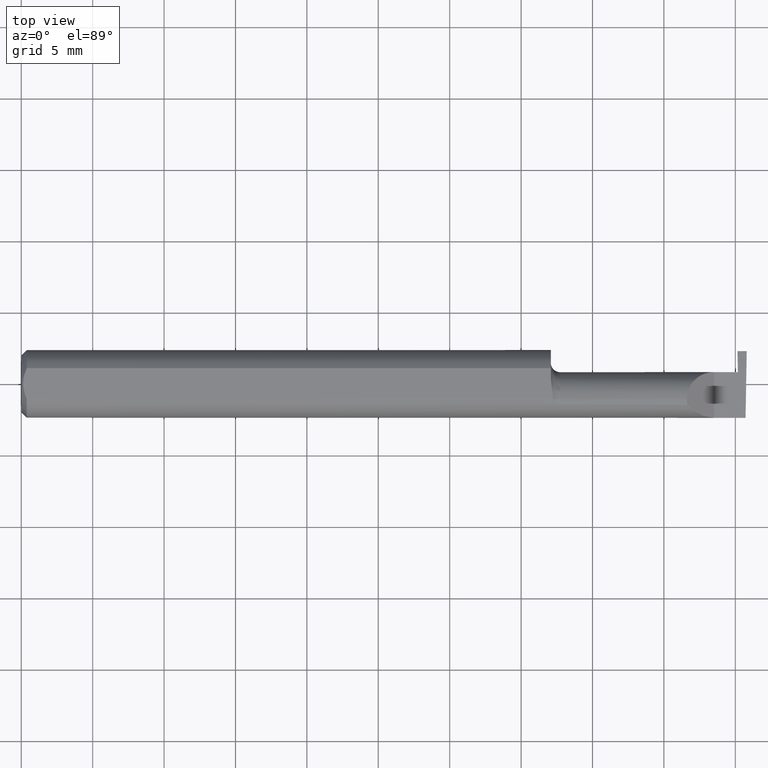
[diagram: clean part render]
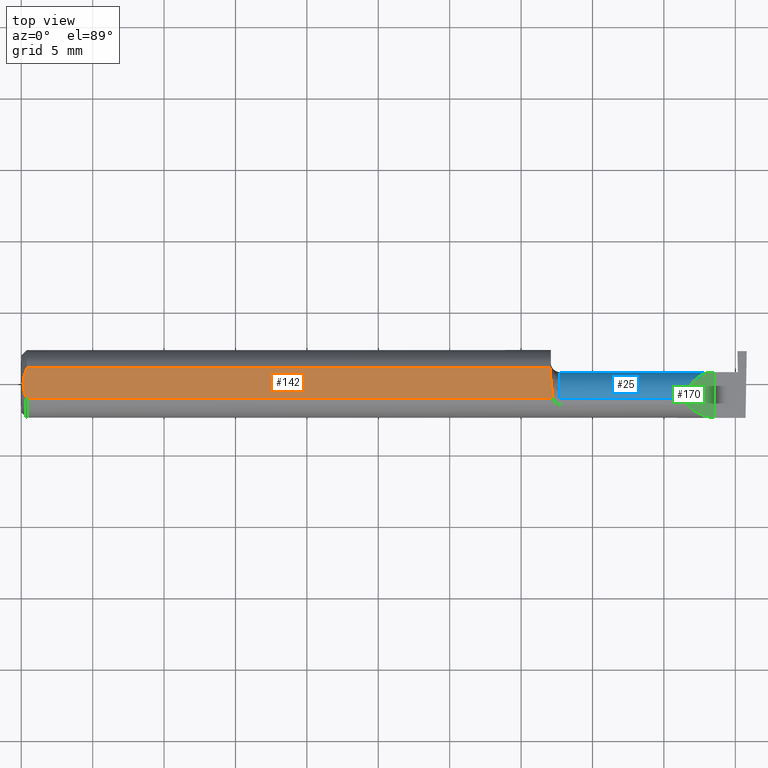
[diagram: same view with three faces highlighted in distinct colors, each labeled with its STEP entity id]
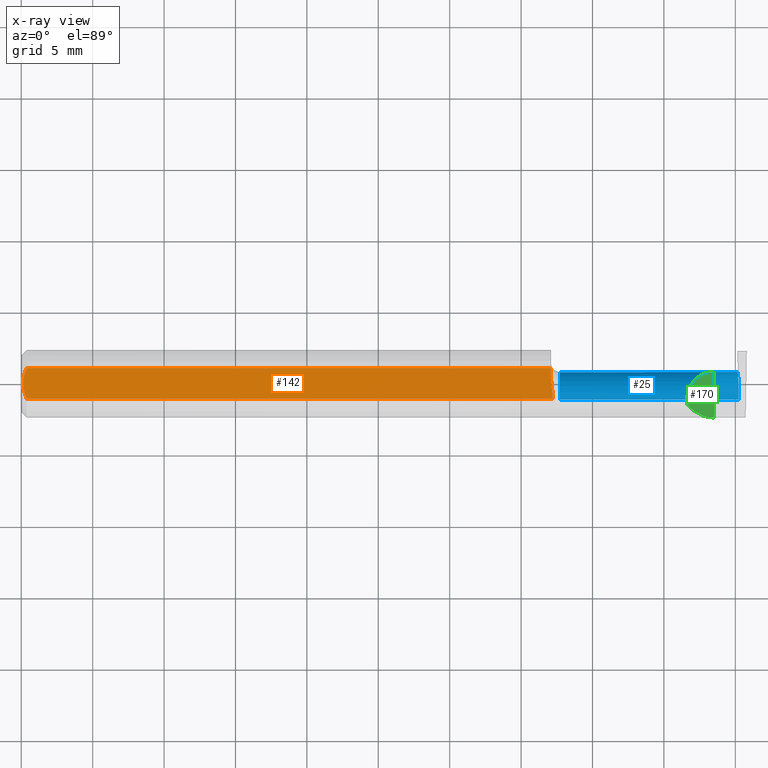
[diagram: x-ray of the same camera — body ghosted, the three highlighted faces saturated]
A machine part, top view with three faces highlighted in distinct colors.
The next image is the same camera in x-ray (body ghosted, the three faces saturated) — at least one of them is partly hidden behind the body in this view.
Their STEP definitions:

[orange] entity #142 — the highlighted planar face has unit normal (0, -0, 1).
#10 = CARTESIAN_POINT ( 'NONE',  ( 1.459999999999999742, 0.01227294415283364248, 0.08359999999999999376 ) ) ;
#30 = CARTESIAN_POINT ( 'NONE',  ( 0.004999999999999986226, 1.025183015402604432E-17, 0.08359999999999999376 ) ) ;
#32 = ORIENTED_EDGE ( 'NONE', *, *, #666, .T. ) ;
#51 = VERTEX_POINT ( 'NONE', #735 ) ;
#68 = CARTESIAN_POINT ( 'NONE',  ( 1.464570820222979908, -0.02392027542784326555, 0.08360000000000000764 ) ) ;
#70 = VECTOR ( 'NONE', #740, 39.37007874015748143 ) ;
#100 = ORIENTED_EDGE ( 'NONE', *, *, #234, .T. ) ;
#113 = ORIENTED_EDGE ( 'NONE', *, *, #310, .T. ) ;
#119 = CARTESIAN_POINT ( 'NONE',  ( 0.01203648650249644972, 0.03550565407121128447, 0.08359999999999997988 ) ) ;
#120 = CARTESIAN_POINT ( 'NONE',  ( 0.004999999999999977553, -0.007328888879231072045, 0.08359999999999997988 ) ) ;
#123 = VECTOR ( 'NONE', #155, 39.37007874015748143 ) ;
#142 = ADVANCED_FACE ( 'NONE', ( #515 ), #146, .T. ) ;
#144 = CARTESIAN_POINT ( 'NONE',  ( 1.466129652885479251, -0.04209513035970094408, 0.08359999999999999376 ) ) ;
#146 = PLANE ( 'NONE',  #411 ) ;
#155 = DIRECTION ( 'NONE',  ( 1.000000000000000000, 0.000000000000000000, 0.000000000000000000 ) ) ;
#163 = CARTESIAN_POINT ( 'NONE',  ( 1.466129652885479251, -0.04209513035970094408, 0.08359999999999999376 ) ) ;
#171 = CARTESIAN_POINT ( 'NONE',  ( 0.009492654797564227878, 0.02859466010166631170, 0.08360000000000000764 ) ) ;
#191 = CARTESIAN_POINT ( 'NONE',  ( 0.01499999999999999598, 0.04209513035969836975, 0.08359999999999999376 ) ) ;
#195 = LINE ( 'NONE', #494, #70 ) ;
#197 = B_SPLINE_CURVE_WITH_KNOTS ( 'NONE', 3,
 ( #486, #120, #298, #781, #712, #596 ),
 .UNSPECIFIED., .F., .F.,
 ( 4, 2, 4 ),
 ( 0.002614097267282503544, 0.003163218599391118963, 0.003712339931499734381 ),
 .UNSPECIFIED. ) ;
#207 = B_SPLINE_CURVE_WITH_KNOTS ( 'NONE', 3,
 ( #482, #119, #171, #543, #302, #410 ),
 .UNSPECIFIED., .F., .F.,
 ( 4, 2, 4 ),
 ( 0.001518921481343302573, 0.002066509374312902950, 0.002614097267282503544 ),
 .UNSPECIFIED. ) ;
#230 = EDGE_CURVE ( 'NONE', #51, #551, #396, .T. ) ;
#234 = EDGE_CURVE ( 'NONE', #433, #51, #197, .T. ) ;
#272 = DIRECTION ( 'NONE',  ( 1.000000000000000000, 0.000000000000000000, -0.000000000000000000 ) ) ;
#277 = DIRECTION ( 'NONE',  ( 0.000000000000000000, -0.000000000000000000, 1.000000000000000000 ) ) ;
#282 = VERTEX_POINT ( 'NONE', #536 ) ;
#295 = VERTEX_POINT ( 'NONE', #191 ) ;
#298 = CARTESIAN_POINT ( 'NONE',  ( 0.005975039161239314132, -0.01453776427033151748, 0.08360000000000000764 ) ) ;
#302 = CARTESIAN_POINT ( 'NONE',  ( 0.004999999999999975818, 0.007308422719211830898, 0.08359999999999999376 ) ) ;
#310 = EDGE_CURVE ( 'NONE', #365, #282, #195, .T. ) ;
#364 = EDGE_CURVE ( 'NONE', #551, #365, #562, .T. ) ;
#365 = VERTEX_POINT ( 'NONE', #10 ) ;
#396 = LINE ( 'NONE', #695, #123 ) ;
#410 = CARTESIAN_POINT ( 'NONE',  ( 0.004999999999999986226, 1.025183015402604432E-17, 0.08359999999999999376 ) ) ;
#411 = AXIS2_PLACEMENT_3D ( 'NONE', #753, #277, #272 ) ;
#433 = VERTEX_POINT ( 'NONE', #30 ) ;
#444 = CARTESIAN_POINT ( 'NONE',  ( 1.459999999999999742, 0.003280657920457031966, 0.08359999999999999376 ) ) ;
#449 = ORIENTED_EDGE ( 'NONE', *, *, #364, .T. ) ;
#453 = EDGE_CURVE ( 'NONE', #282, #295, #460, .T. ) ;
#460 = LINE ( 'NONE', #516, #616 ) ;
#464 = DIRECTION ( 'NONE',  ( -1.000000000000000000, -0.000000000000000000, -0.000000000000000000 ) ) ;
#482 = CARTESIAN_POINT ( 'NONE',  ( 0.01499999999999999598, 0.04209513035969836975, 0.08359999999999999376 ) ) ;
#486 = CARTESIAN_POINT ( 'NONE',  ( 0.004999999999999986226, 1.025183015402604432E-17, 0.08359999999999999376 ) ) ;
#494 = CARTESIAN_POINT ( 'NONE',  ( 1.459999999999999742, -0.09360000000000003040, 0.08359999999999999376 ) ) ;
#515 = FACE_OUTER_BOUND ( 'NONE', #717, .T. ) ;
#516 = CARTESIAN_POINT ( 'NONE',  ( 0.000000000000000000, 0.04209513035969836975, 0.08359999999999999376 ) ) ;
#536 = CARTESIAN_POINT ( 'NONE',  ( 1.459999999999999742, 0.04209513035969834893, 0.08359999999999999376 ) ) ;
#543 = CARTESIAN_POINT ( 'NONE',  ( 0.005981829149300634495, 0.01454044632356570055, 0.08359999999999997988 ) ) ;
#549 = CARTESIAN_POINT ( 'NONE',  ( 1.459999999999999742, 0.01227294415283364248, 0.08359999999999999376 ) ) ;
#551 = VERTEX_POINT ( 'NONE', #163 ) ;
#562 = B_SPLINE_CURVE_WITH_KNOTS ( 'NONE', 3,
 ( #144, #672, #68, #736, #444, #549 ),
 .UNSPECIFIED., .F., .F.,
 ( 4, 2, 4 ),
 ( 0.009672910729349781800, 0.01035804079918456987, 0.01104317086901935793 ),
 .UNSPECIFIED. ) ;
#583 = ORIENTED_EDGE ( 'NONE', *, *, #230, .T. ) ;
#596 = CARTESIAN_POINT ( 'NONE',  ( 0.01499999999999999944, -0.04209513035969836975, 0.08359999999999999376 ) ) ;
#616 = VECTOR ( 'NONE', #464, 39.37007874015748143 ) ;
#661 = ORIENTED_EDGE ( 'NONE', *, *, #453, .T. ) ;
#666 = EDGE_CURVE ( 'NONE', #295, #433, #207, .T. ) ;
#672 = CARTESIAN_POINT ( 'NONE',  ( 1.466082007218903138, -0.03301619840524110810, 0.08359999999999997988 ) ) ;
#695 = CARTESIAN_POINT ( 'NONE',  ( 0.000000000000000000, -0.04209513035969836975, 0.08359999999999999376 ) ) ;
#712 = CARTESIAN_POINT ( 'NONE',  ( 0.01206089165507020187, -0.03555991978469316694, 0.08359999999999999376 ) ) ;
#717 = EDGE_LOOP ( 'NONE', ( #583, #449, #113, #661, #32, #100 ) ) ;
#735 = CARTESIAN_POINT ( 'NONE',  ( 0.01499999999999999944, -0.04209513035969836975, 0.08359999999999999376 ) ) ;
#736 = CARTESIAN_POINT ( 'NONE',  ( 1.461463898467976863, -0.005727447913487648465, 0.08359999999999997988 ) ) ;
#740 = DIRECTION ( 'NONE',  ( -0.000000000000000000, 1.000000000000000000, 0.000000000000000000 ) ) ;
#753 = CARTESIAN_POINT ( 'NONE',  ( 2.000000000000000000, -0.09360000000000003040, 0.08359999999999999376 ) ) ;
#781 = CARTESIAN_POINT ( 'NONE',  ( 0.009539353699420717939, -0.02875682547511376405, 0.08359999999999997988 ) ) ;

[blue] entity #25 — the highlighted cylindrical surface (edge-blend (fillet) strip) has radius 1.905 mm, axis along (-1, -0, -0).
#3 = CARTESIAN_POINT ( 'NONE',  ( 1.866066017177982594, 0.03239999999999998437, 0.04393398282201787380 ) ) ;
#17 = VERTEX_POINT ( 'NONE', #257 ) ;
#19 = CARTESIAN_POINT ( 'NONE',  ( 1.978214534726833840, -0.007134900077140363985, -0.07499999999999999722 ) ) ;
#22 = LINE ( 'NONE', #763, #33 ) ;
#25 = ADVANCED_FACE ( 'NONE', ( #200 ), #439, .T. ) ;
#33 = VECTOR ( 'NONE', #571, 39.37007874015748143 ) ;
#35 = DIRECTION ( 'NONE',  ( -1.000000000000000000, -0.000000000000000000, -0.000000000000000000 ) ) ;
#42 = EDGE_CURVE ( 'NONE', #131, #586, #420, .T. ) ;
#50 = CARTESIAN_POINT ( 'NONE',  ( 1.978213402547462918, -0.04260000000000001286, -0.07499999999999998335 ) ) ;
#55 = VECTOR ( 'NONE', #463, 39.37007874015748143 ) ;
#78 = CARTESIAN_POINT ( 'NONE',  ( 1.459999999999999964, -0.04259999999999998510, 0.07499999999999998335 ) ) ;
#87 = EDGE_CURVE ( 'NONE', #465, #319, #502, .T. ) ;
#98 = VECTOR ( 'NONE', #394, 39.37007874015748143 ) ;
#125 =( BOUNDED_CURVE ( )  B_SPLINE_CURVE ( 3, ( #346, #276, #707, #165 ),
 .UNSPECIFIED., .F., .T. ) 
 B_SPLINE_CURVE_WITH_KNOTS ( ( 4, 4 ),
 ( 4.455205321888865200, 4.711308219781928486 ),
 .UNSPECIFIED. ) 
 CURVE ( )  GEOMETRIC_REPRESENTATION_ITEM ( )  RATIONAL_B_SPLINE_CURVE ( ( 1.000000000000000000, 0.9945417399294781413, 0.9945417399294781413, 1.000000000000000000 ) ) 
 REPRESENTATION_ITEM ( '' )  );
#130 = CARTESIAN_POINT ( 'NONE',  ( 1.975284083932824064, 0.02994487577554267102, -0.01903262984222200624 ) ) ;
#131 = VERTEX_POINT ( 'NONE', #688 ) ;
#133 = ORIENTED_EDGE ( 'NONE', *, *, #728, .F. ) ;
#158 = CARTESIAN_POINT ( 'NONE',  ( 1.459999999999999964, -0.04259999999999997816, -0.07499999999999998335 ) ) ;
#165 = CARTESIAN_POINT ( 'NONE',  ( 1.974499999999999922, 0.03239999167003507208, -3.534818988851040720E-05 ) ) ;
#175 = EDGE_CURVE ( 'NONE', #131, #649, #628, .T. ) ;
#199 = AXIS2_PLACEMENT_3D ( 'NONE', #285, #636, #696 ) ;
#200 = FACE_OUTER_BOUND ( 'NONE', #316, .T. ) ;
#203 = ORIENTED_EDGE ( 'NONE', *, *, #335, .F. ) ;
#210 = EDGE_CURVE ( 'NONE', #586, #465, #22, .T. ) ;
#247 = VERTEX_POINT ( 'NONE', #50 ) ;
#248 = AXIS2_PLACEMENT_3D ( 'NONE', #739, #35, #390 ) ;
#257 = CARTESIAN_POINT ( 'NONE',  ( 1.484999999999999876, -0.04259999999999997122, -0.07499999999999998335 ) ) ;
#275 = ORIENTED_EDGE ( 'NONE', *, *, #698, .T. ) ;
#276 = CARTESIAN_POINT ( 'NONE',  ( 1.975027797685394937, 0.03157410243558825269, -0.01282266061342999565 ) ) ;
#285 = CARTESIAN_POINT ( 'NONE',  ( 1.484999999999999876, -0.04259999999999998510, 0.000000000000000000 ) ) ;
#304 = CARTESIAN_POINT ( 'NONE',  ( 1.459999999999999964, -0.04259999999999998510, 0.000000000000000000 ) ) ;
#316 = EDGE_LOOP ( 'NONE', ( #203, #275, #772, #605, #599, #398, #737, #133 ) ) ;
#319 = VERTEX_POINT ( 'NONE', #500 ) ;
#335 = EDGE_CURVE ( 'NONE', #247, #748, #528, .T. ) ;
#346 = CARTESIAN_POINT ( 'NONE',  ( 1.975284083932824064, 0.02994487577554267102, -0.01903262984222200624 ) ) ;
#368 = DIRECTION ( 'NONE',  ( 0.000000000000000000, 0.000000000000000000, 1.000000000000000000 ) ) ;
#382 = CARTESIAN_POINT ( 'NONE',  ( 1.977080687037212847, 0.02094495418688681332, -0.05333678008583640079 ) ) ;
#385 = CARTESIAN_POINT ( 'NONE',  ( 1.910000000000000142, 0.03239999999999999131, 1.102182119232621301E-17 ) ) ;
#390 = DIRECTION ( 'NONE',  ( 0.000000000000000000, 0.000000000000000000, 1.000000000000000000 ) ) ;
#394 = DIRECTION ( 'NONE',  ( -1.000000000000000000, -0.000000000000000000, -0.000000000000000000 ) ) ;
#398 = ORIENTED_EDGE ( 'NONE', *, *, #210, .T. ) ;
#399 = LINE ( 'NONE', #158, #98 ) ;
#420 =( BOUNDED_CURVE ( )  B_SPLINE_CURVE ( 3, ( #556, #504, #3, #671 ),
 .UNSPECIFIED., .F., .F. ) 
 B_SPLINE_CURVE_WITH_KNOTS ( ( 4, 4 ),
 ( 0.000000000000000000, 1.570796326794896558 ),
 .UNSPECIFIED. ) 
 CURVE ( )  GEOMETRIC_REPRESENTATION_ITEM ( )  RATIONAL_B_SPLINE_CURVE ( ( 1.000000000000000000, 0.8047378541243649375, 0.8047378541243649375, 1.000000000000000000 ) ) 
 REPRESENTATION_ITEM ( '' )  );
#422 = EDGE_CURVE ( 'NONE', #649, #17, #744, .T. ) ;
#429 = CARTESIAN_POINT ( 'NONE',  ( 1.978213402547462918, -0.04260000000000001286, -0.07499999999999998335 ) ) ;
#439 = CYLINDRICAL_SURFACE ( 'NONE', #679, 0.07499999999999998335 ) ;
#463 = DIRECTION ( 'NONE',  ( -1.000000000000000000, -0.000000000000000000, -0.000000000000000000 ) ) ;
#465 = VERTEX_POINT ( 'NONE', #568 ) ;
#500 = CARTESIAN_POINT ( 'NONE',  ( 1.974499999999999922, 0.03239999167003507208, -3.534818988851040720E-05 ) ) ;
#502 = CIRCLE ( 'NONE', #248, 0.07499999999999999722 ) ;
#504 = CARTESIAN_POINT ( 'NONE',  ( 1.835000000000000187, 0.001333982822017879596, 0.07499999999999998335 ) ) ;
#520 = CARTESIAN_POINT ( 'NONE',  ( 1.975284083932824064, 0.02994487577554267102, -0.01903262984222200624 ) ) ;
#528 =( BOUNDED_CURVE ( )  B_SPLINE_CURVE ( 3, ( #429, #19, #382, #130 ),
 .UNSPECIFIED., .F., .F. ) 
 B_SPLINE_CURVE_WITH_KNOTS ( ( 4, 4 ),
 ( 3.140983202202990654, 4.455205321888861647 ),
 .UNSPECIFIED. ) 
 CURVE ( )  GEOMETRIC_REPRESENTATION_ITEM ( )  RATIONAL_B_SPLINE_CURVE ( ( 1.000000000000000000, 0.8611734602017913076, 0.8611734602017913076, 1.000000000000000000 ) ) 
 REPRESENTATION_ITEM ( '' )  );
#556 = CARTESIAN_POINT ( 'NONE',  ( 1.835000000000000409, -0.04259999999999998510, 0.07499999999999998335 ) ) ;
#568 = CARTESIAN_POINT ( 'NONE',  ( 1.974499999999999922, 0.03240000000000000518, 6.613080830317130235E-17 ) ) ;
#571 = DIRECTION ( 'NONE',  ( 1.000000000000000000, 0.000000000000000000, 0.000000000000000000 ) ) ;
#586 = VERTEX_POINT ( 'NONE', #385 ) ;
#590 = CARTESIAN_POINT ( 'NONE',  ( 1.484999999999999876, -0.04259999999999997816, 0.07499999999999998335 ) ) ;
#599 = ORIENTED_EDGE ( 'NONE', *, *, #42, .T. ) ;
#605 = ORIENTED_EDGE ( 'NONE', *, *, #175, .F. ) ;
#628 = LINE ( 'NONE', #78, #55 ) ;
#636 = DIRECTION ( 'NONE',  ( -1.000000000000000000, -0.000000000000000000, -0.000000000000000000 ) ) ;
#649 = VERTEX_POINT ( 'NONE', #590 ) ;
#671 = CARTESIAN_POINT ( 'NONE',  ( 1.910000000000000142, 0.03239999999999999131, 1.102182119232621301E-17 ) ) ;
#679 = AXIS2_PLACEMENT_3D ( 'NONE', #304, #680, #368 ) ;
#680 = DIRECTION ( 'NONE',  ( -1.000000000000000000, -0.000000000000000000, -0.000000000000000000 ) ) ;
#688 = CARTESIAN_POINT ( 'NONE',  ( 1.835000000000000409, -0.04259999999999998510, 0.07499999999999998335 ) ) ;
#696 = DIRECTION ( 'NONE',  ( 0.000000000000000000, 0.000000000000000000, 1.000000000000000000 ) ) ;
#698 = EDGE_CURVE ( 'NONE', #247, #17, #399, .T. ) ;
#707 = CARTESIAN_POINT ( 'NONE',  ( 1.974765001967077271, 0.03239696580267937415, -0.006455479666460838852 ) ) ;
#728 = EDGE_CURVE ( 'NONE', #748, #319, #125, .T. ) ;
#737 = ORIENTED_EDGE ( 'NONE', *, *, #87, .T. ) ;
#739 = CARTESIAN_POINT ( 'NONE',  ( 1.974499999999999922, -0.04259999999999998510, 0.000000000000000000 ) ) ;
#744 = CIRCLE ( 'NONE', #199, 0.07499999999999998335 ) ;
#748 = VERTEX_POINT ( 'NONE', #520 ) ;
#763 = CARTESIAN_POINT ( 'NONE',  ( 1.459999999999999964, 0.03239999999999999825, 6.613092715395738282E-17 ) ) ;
#772 = ORIENTED_EDGE ( 'NONE', *, *, #422, .F. ) ;

[green] entity #170 — the highlighted planar face has unit normal (-0.7071, 0, -0.7071).
#3 = CARTESIAN_POINT ( 'NONE',  ( 1.866066017177982594, 0.03239999999999998437, 0.04393398282201787380 ) ) ;
#14 = ORIENTED_EDGE ( 'NONE', *, *, #560, .T. ) ;
#18 = CARTESIAN_POINT ( 'NONE',  ( 1.880893035518783396, -0.09359999999999998876, 0.02910696448121669402 ) ) ;
#42 = EDGE_CURVE ( 'NONE', #131, #586, #420, .T. ) ;
#58 = EDGE_CURVE ( 'NONE', #77, #149, #388, .T. ) ;
#77 = VERTEX_POINT ( 'NONE', #742 ) ;
#86 = EDGE_CURVE ( 'NONE', #149, #131, #254, .T. ) ;
#102 = LINE ( 'NONE', #347, #323 ) ;
#121 = EDGE_LOOP ( 'NONE', ( #547, #377, #14, #778 ) ) ;
#131 = VERTEX_POINT ( 'NONE', #688 ) ;
#147 = DIRECTION ( 'NONE',  ( -0.000000000000000000, 1.000000000000000000, -0.000000000000000000 ) ) ;
#149 = VERTEX_POINT ( 'NONE', #265 ) ;
#152 = FACE_OUTER_BOUND ( 'NONE', #121, .T. ) ;
#170 = ADVANCED_FACE ( 'NONE', ( #152 ), #328, .F. ) ;
#174 = AXIS2_PLACEMENT_3D ( 'NONE', #280, #638, #521 ) ;
#194 = CARTESIAN_POINT ( 'NONE',  ( 1.835542168554754605, -0.05300374992736077429, 0.07445783144524567576 ) ) ;
#249 = CARTESIAN_POINT ( 'NONE',  ( 1.836620632051322310, -0.05810704225352133351, 0.07337936794867813695 ) ) ;
#254 =( BOUNDED_CURVE ( )  B_SPLINE_CURVE ( 3, ( #249, #194, #512, #766 ),
 .UNSPECIFIED., .F., .F. ) 
 B_SPLINE_CURVE_WITH_KNOTS ( ( 4, 4 ),
 ( 6.074922494366326475, 6.283185307179586232 ),
 .UNSPECIFIED. ) 
 CURVE ( )  GEOMETRIC_REPRESENTATION_ITEM ( )  RATIONAL_B_SPLINE_CURVE ( ( 1.000000000000000000, 0.9963888149483994816, 0.9963888149483994816, 1.000000000000000000 ) ) 
 REPRESENTATION_ITEM ( '' )  );
#265 = CARTESIAN_POINT ( 'NONE',  ( 1.836620632051322310, -0.05810704225352133351, 0.07337936794867813695 ) ) ;
#280 = CARTESIAN_POINT ( 'NONE',  ( 1.910000000000000142, -0.1000000000000000056, 1.102182119232621301E-17 ) ) ;
#323 = VECTOR ( 'NONE', #147, 39.37007874015748143 ) ;
#328 = PLANE ( 'NONE',  #174 ) ;
#347 = CARTESIAN_POINT ( 'NONE',  ( 1.910000000000000142, -0.1000000000000000056, 1.102182119232621301E-17 ) ) ;
#377 = ORIENTED_EDGE ( 'NONE', *, *, #58, .F. ) ;
#385 = CARTESIAN_POINT ( 'NONE',  ( 1.910000000000000142, 0.03239999999999999131, 1.102182119232621301E-17 ) ) ;
#388 =( BOUNDED_CURVE ( )  B_SPLINE_CURVE ( 3, ( #611, #18, #622, #428 ),
 .UNSPECIFIED., .F., .T. ) 
 B_SPLINE_CURVE_WITH_KNOTS ( ( 4, 4 ),
 ( 4.712388980384689674, 5.613420356061716632 ),
 .UNSPECIFIED. ) 
 CURVE ( )  GEOMETRIC_REPRESENTATION_ITEM ( )  RATIONAL_B_SPLINE_CURVE ( ( 1.000000000000000000, 0.9334817841311877640, 0.9334817841311877640, 1.000000000000000000 ) ) 
 REPRESENTATION_ITEM ( '' )  );
#420 =( BOUNDED_CURVE ( )  B_SPLINE_CURVE ( 3, ( #556, #504, #3, #671 ),
 .UNSPECIFIED., .F., .F. ) 
 B_SPLINE_CURVE_WITH_KNOTS ( ( 4, 4 ),
 ( 0.000000000000000000, 1.570796326794896558 ),
 .UNSPECIFIED. ) 
 CURVE ( )  GEOMETRIC_REPRESENTATION_ITEM ( )  RATIONAL_B_SPLINE_CURVE ( ( 1.000000000000000000, 0.8047378541243649375, 0.8047378541243649375, 1.000000000000000000 ) ) 
 REPRESENTATION_ITEM ( '' )  );
#428 = CARTESIAN_POINT ( 'NONE',  ( 1.836620632051322310, -0.05810704225352133351, 0.07337936794867813695 ) ) ;
#504 = CARTESIAN_POINT ( 'NONE',  ( 1.835000000000000187, 0.001333982822017879596, 0.07499999999999998335 ) ) ;
#512 = CARTESIAN_POINT ( 'NONE',  ( 1.835000000000000187, -0.04781600192481537392, 0.07499999999999998335 ) ) ;
#521 = DIRECTION ( 'NONE',  ( -0.7071067811865460184, 0.000000000000000000, 0.7071067811865490160 ) ) ;
#547 = ORIENTED_EDGE ( 'NONE', *, *, #86, .F. ) ;
#556 = CARTESIAN_POINT ( 'NONE',  ( 1.835000000000000409, -0.04259999999999998510, 0.07499999999999998335 ) ) ;
#560 = EDGE_CURVE ( 'NONE', #77, #586, #102, .T. ) ;
#586 = VERTEX_POINT ( 'NONE', #385 ) ;
#611 = CARTESIAN_POINT ( 'NONE',  ( 1.910000000000000142, -0.09359999999999998876, 1.102182119232621301E-17 ) ) ;
#622 = CARTESIAN_POINT ( 'NONE',  ( 1.854690286057537829, -0.08092595952420833516, 0.05530971394246224360 ) ) ;
#638 = DIRECTION ( 'NONE',  ( -0.7071067811865490160, 0.000000000000000000, -0.7071067811865460184 ) ) ;
#671 = CARTESIAN_POINT ( 'NONE',  ( 1.910000000000000142, 0.03239999999999999131, 1.102182119232621301E-17 ) ) ;
#688 = CARTESIAN_POINT ( 'NONE',  ( 1.835000000000000409, -0.04259999999999998510, 0.07499999999999998335 ) ) ;
#742 = CARTESIAN_POINT ( 'NONE',  ( 1.910000000000000142, -0.09359999999999998876, 1.102182119232621301E-17 ) ) ;
#766 = CARTESIAN_POINT ( 'NONE',  ( 1.835000000000000409, -0.04259999999999998510, 0.07499999999999998335 ) ) ;
#778 = ORIENTED_EDGE ( 'NONE', *, *, #42, .F. ) ;